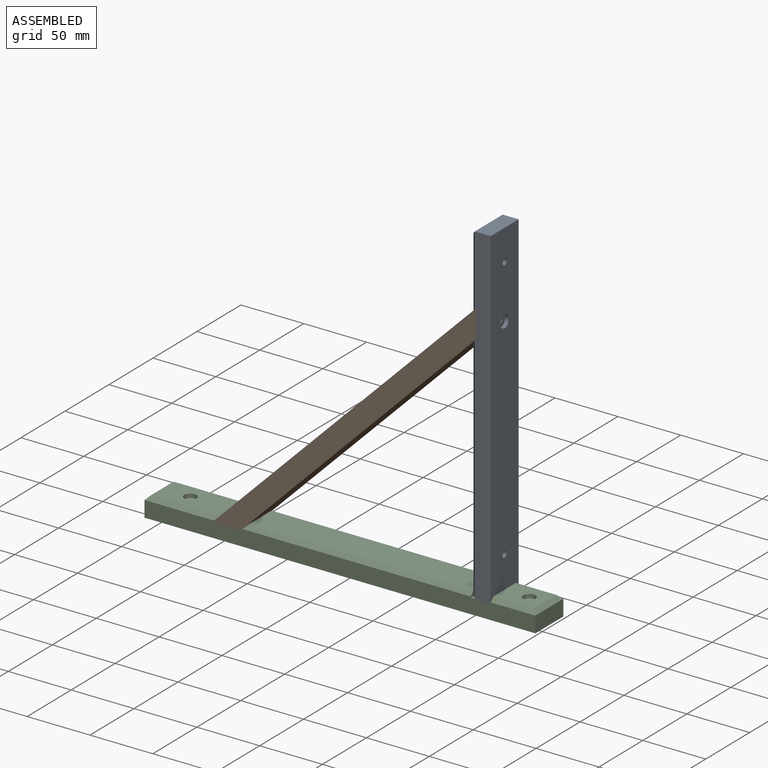
[diagram: assembled view]
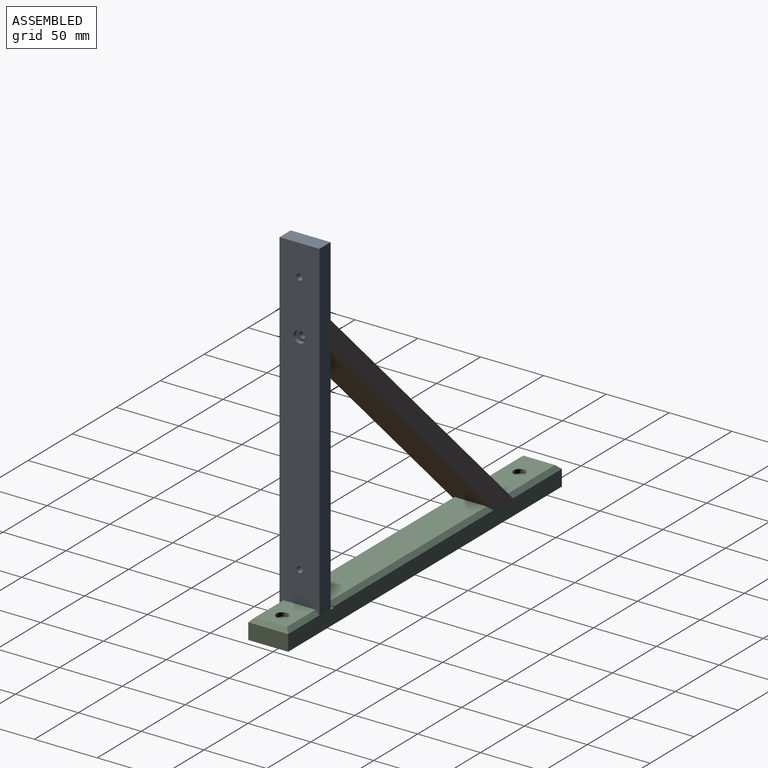
[diagram: assembled view, second angle]
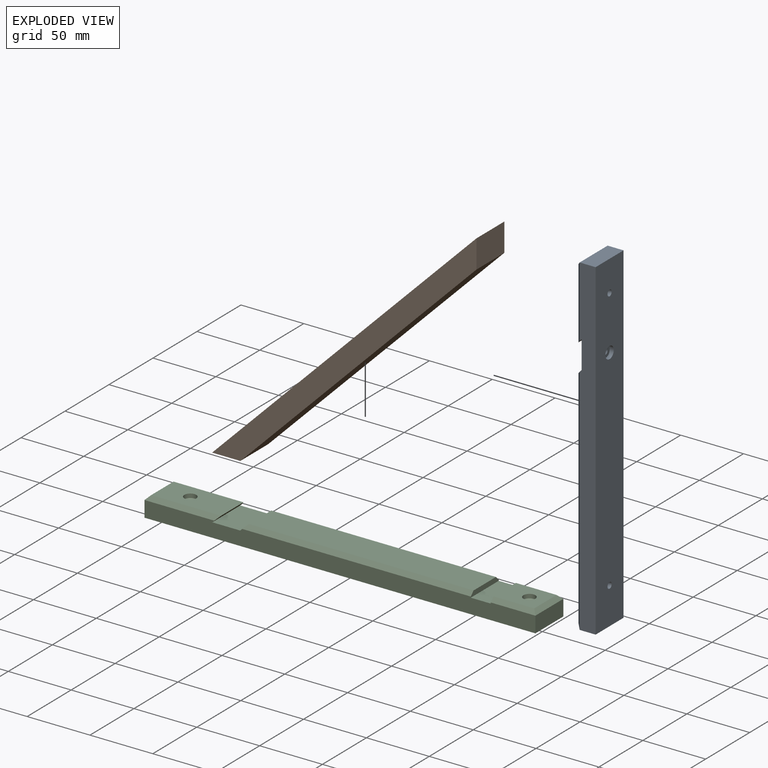
[diagram: exploded view]
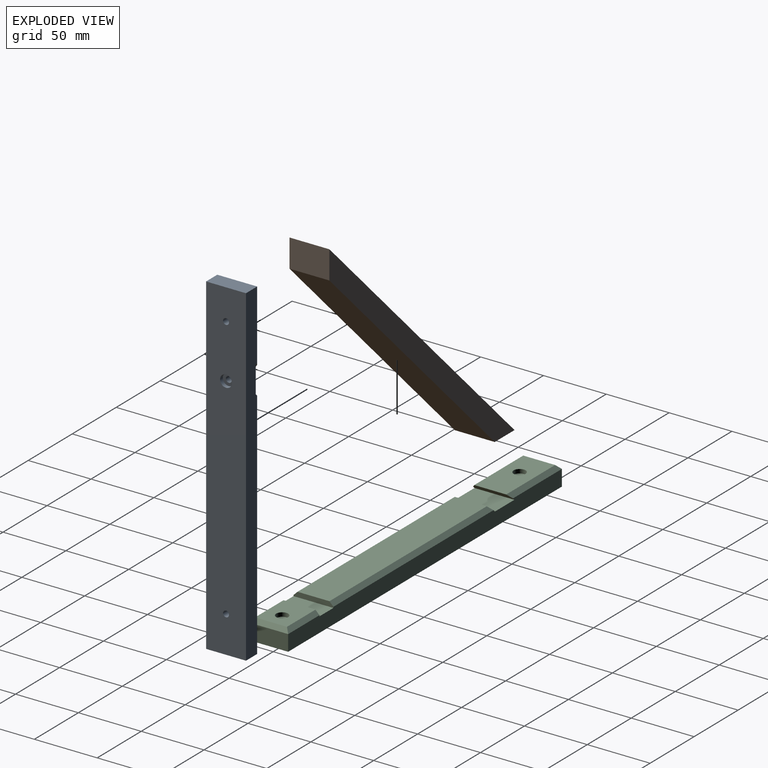
[diagram: exploded view, second angle]
ASSEMBLY  parts=3 mates=3
PART A: 25 faces, bbox 264.3x31.8x15.9 mm
  f0: plane 56.36x25.4mm, normal (0,0,1), area 1360.2mm2, adj f5,f7,f17,f20,f24
  f1: plane 264.32x12.7mm, normal (0,1,0), area 3321.6mm2, adj f4,f5,f8,f9,f11,f22,f23,f24
  f2: plane 264.32x12.7mm, normal (0,-1,0), area 3321.6mm2, adj f6,f7,f8,f9,f11,f22,f23,f24
  f3: cylinder r=2.38mm len=7.94mm, axis (0,0,-1), area 118.8mm2, adj f18,f22
  f4: plane 185.74x3.18mm, normal (0,0.71,0.71), area 819.7mm2, adj f1,f10,f21,f23
  f5: plane 59.53x3.18mm, normal (0,0.71,0.71), area 253mm2, adj f0,f1,f20,f24
  f6: plane 185.74x3.18mm, normal (0,-0.71,0.71), area 819.7mm2, adj f2,f10,f21,f23
  f7: plane 59.53x3.18mm, normal (0,-0.71,0.71), area 253mm2, adj f0,f2,f20,f24
  f8: plane 31.75x12.7mm, normal (1,0,0), area 403.2mm2, adj f1,f2,f11,f20
  f9: plane 31.75x12.7mm, normal (-1,0,0), area 403.2mm2, adj f1,f2,f11,f21
  f10: plane 179.39x25.4mm, normal (0,0,1), area 4485.2mm2, adj f4,f6,f14,f21,f23
  f11: plane 264.32x31.75mm, normal (0,0,-1), area 8285.2mm2, adj f1,f2,f8,f9,f12,f15,f19
  f12: cylinder r=2.38mm len=12.7mm, axis (0,0,1), area 190mm2, adj f11,f13
  f13: plane 9.53x9.53mm, normal (0,0,1), area 53.4mm2, adj f12,f14
  f14: cylinder r=4.76mm len=9.53mm, axis (0,0,1), area 95mm2, adj f10,f13
  f15: cylinder r=2.38mm len=12.7mm, axis (0,0,1), area 190mm2, adj f11,f16
  f16: plane 9.53x9.53mm, normal (0,0,1), area 53.4mm2, adj f15,f17
  f17: cylinder r=4.76mm len=9.53mm, axis (0,0,1), area 95mm2, adj f0,f16
  f18: plane 9.53x9.53mm, normal (0,0,-1), area 53.4mm2, adj f3,f19
  f19: cylinder r=4.76mm len=9.53mm, axis (0,0,-1), area 95mm2, adj f11,f18
  f20: plane 31.75x3.18mm, normal (0.71,0,0.71), area 128.3mm2, adj f0,f5,f7,f8
  f21: plane 31.75x3.18mm, normal (-0.71,0,0.71), area 128.3mm2, adj f4,f6,f9,f10
  f22: plane 31.75x22.23mm, normal (0,0,1), area 687.8mm2, adj f1,f2,f3,f23,f24
  f23: plane 31.75x4.76mm, normal (0.71,0,0.71), area 199.6mm2, adj f1,f2,f4,f6,f10,f22
  f24: plane 31.75x4.76mm, normal (-0.71,0,-0.71), area 199.6mm2, adj f0,f1,f2,f5,f7,f22
PART B: 6 faces, bbox 297.6x31.8x15.9 mm
  f0: plane 297.56x15.88mm, normal (0,-1,0), area 4471.8mm2, adj f1,f3,f4,f5
  f1: plane 265.81x31.75mm, normal (0,0,-1), area 8439.5mm2, adj f0,f2,f4,f5
  f2: plane 297.56x15.88mm, normal (0,1,0), area 4471.8mm2, adj f1,f3,f4,f5
  f3: plane 297.56x31.75mm, normal (0,0,1), area 9447.6mm2, adj f0,f2,f4,f5
  f4: plane 31.75x15.88mm, normal (0.71,0,-0.71), area 712.8mm2, adj f0,f1,f2,f3
  f5: plane 31.75x15.88mm, normal (-0.71,0,-0.71), area 712.8mm2, adj f0,f1,f2,f3
PART C: 28 faces, bbox 311.2x31.8x15.9 mm
  f0: plane 178.75x25.4mm, normal (0,0,1), area 4540.3mm2, adj f13,f14,f24,f27
  f1: plane 58.74x3.18mm, normal (0,0.71,0.71), area 249.5mm2, adj f4,f10,f12,f26
  f2: plane 58.74x3.18mm, normal (0,-0.71,0.71), area 249.5mm2, adj f5,f10,f12,f26
  f3: plane 32.39x25.4mm, normal (0,0,1), area 751.3mm2, adj f6,f7,f15,f17,f23
  f4: plane 311.15x12.7mm, normal (0,1,0), area 3903.7mm2, adj f1,f6,f8,f9,f11,f13,f22,f23
  f5: plane 311.15x12.7mm, normal (0,-1,0), area 3903.7mm2, adj f2,f7,f8,f9,f11,f14,f22,f23
  f6: plane 35.56x3.18mm, normal (0,0.71,0.71), area 152.5mm2, adj f3,f4,f15,f23
  f7: plane 35.56x3.18mm, normal (0,-0.71,0.71), area 152.5mm2, adj f3,f5,f15,f23
  f8: plane 31.75x12.7mm, normal (-1,0,0), area 403.2mm2, adj f4,f5,f11,f12
  f9: plane 31.75x12.7mm, normal (1,0,0), area 403.2mm2, adj f4,f5,f11,f15
  f10: plane 55.56x25.4mm, normal (0,0,1), area 1340mm2, adj f1,f2,f12,f19,f26
  f11: plane 311.15x31.75mm, normal (0,0,-1), area 9843.4mm2, adj f4,f5,f8,f9,f16,f18
  f12: plane 31.75x3.18mm, normal (-0.71,0,0.71), area 128.3mm2, adj f1,f2,f8,f10
  f13: plane 181.93x3.18mm, normal (0,0.71,0.71), area 809.7mm2, adj f0,f4,f24,f27
  f14: plane 181.93x3.18mm, normal (0,-0.71,0.71), area 809.7mm2, adj f0,f5,f24,f27
  f15: plane 31.75x3.18mm, normal (0.71,0,0.71), area 128.3mm2, adj f3,f6,f7,f9
  f16: cylinder r=2.38mm len=10.29mm, axis (0,0,1), area 153.9mm2, adj f11,f21
  f17: cylinder r=4.76mm len=9.53mm, axis (0,0,1), area 96mm2, adj f3,f21
  f18: cylinder r=2.38mm len=10.29mm, axis (0,0,1), area 153.9mm2, adj f11,f20
  f19: cylinder r=4.76mm len=9.53mm, axis (0,0,1), area 96mm2, adj f10,f20
  f20: cone r=2.38mm half-angle=45deg, axis (0,0,1), area 75.6mm2, adj f18,f19
  f21: cone r=2.38mm half-angle=45deg, axis (0,0,1), area 75.6mm2, adj f16,f17
  f22: plane 31.75x15.88mm, normal (0,0,1), area 504mm2, adj f4,f5,f23,f24
  f23: plane 31.75x3.97mm, normal (-1,0,0), area 115.9mm2, adj f3,f4,f5,f6,f7,f22
  f24: plane 31.75x3.97mm, normal (1,0,0), area 115.9mm2, adj f0,f4,f5,f13,f14,f22
  f25: plane 31.75x22.23mm, normal (0,0,1), area 705.6mm2, adj f4,f5,f26,f27
  f26: plane 31.75x4.76mm, normal (0.71,0,-0.71), area 199.6mm2, adj f1,f2,f4,f5,f10,f25
  f27: plane 31.75x4.76mm, normal (-0.71,0,0.71), area 199.6mm2, adj f0,f4,f5,f13,f14,f25
PLACE A rot(axis=(0,-1,0),90deg) t=(120.02,0,144.07)mm
PLACE B rot(axis=(0,-1,0),45deg) t=(14.72,0,105.09)mm
PLACE C at identity fixed
MATE planar A.f11 <-> C.f23  axis (1,0,0) through (120.02,0,143.5)mm
MATE fastened B.f5 <-> C.f25  axis (0,0,-1) through (-90.49,0,11.11)mm
MATE fastened A.f9 <-> C.f22  axis (0,0,-1) through (120.02,0,11.91)mm
